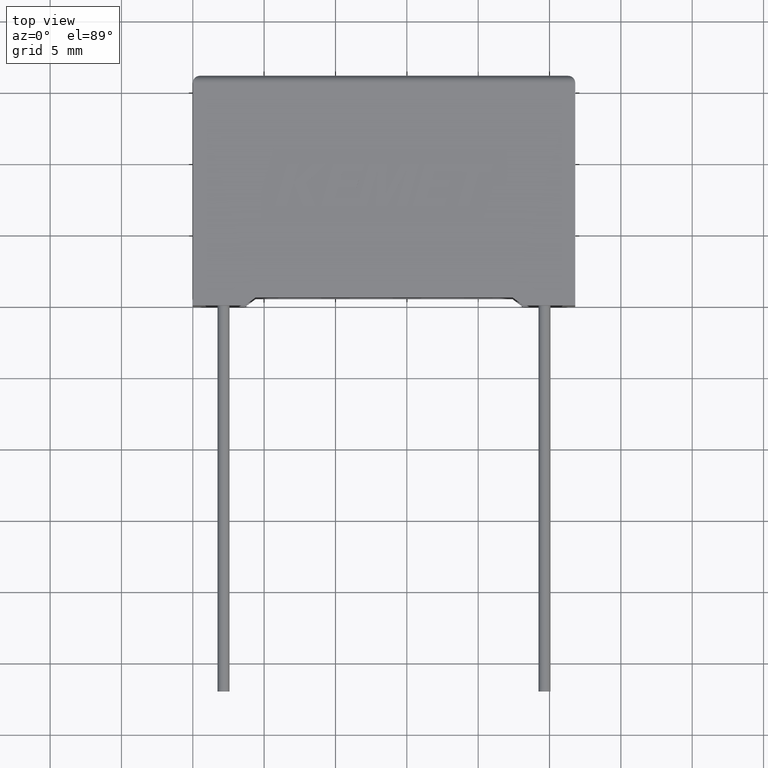
[diagram: clean part render]
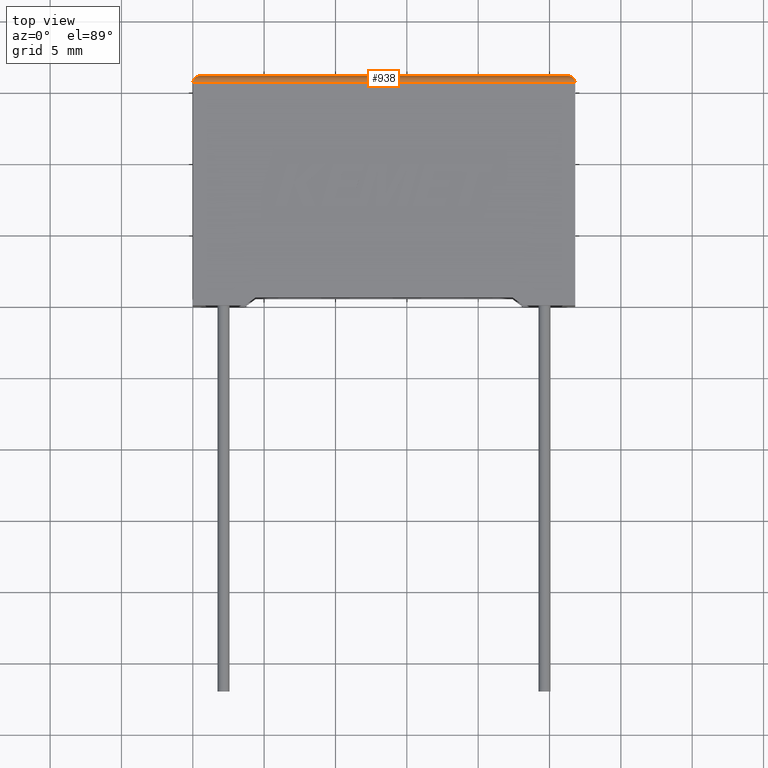
[diagram: same view with one face highlighted and labeled with its STEP entity id]
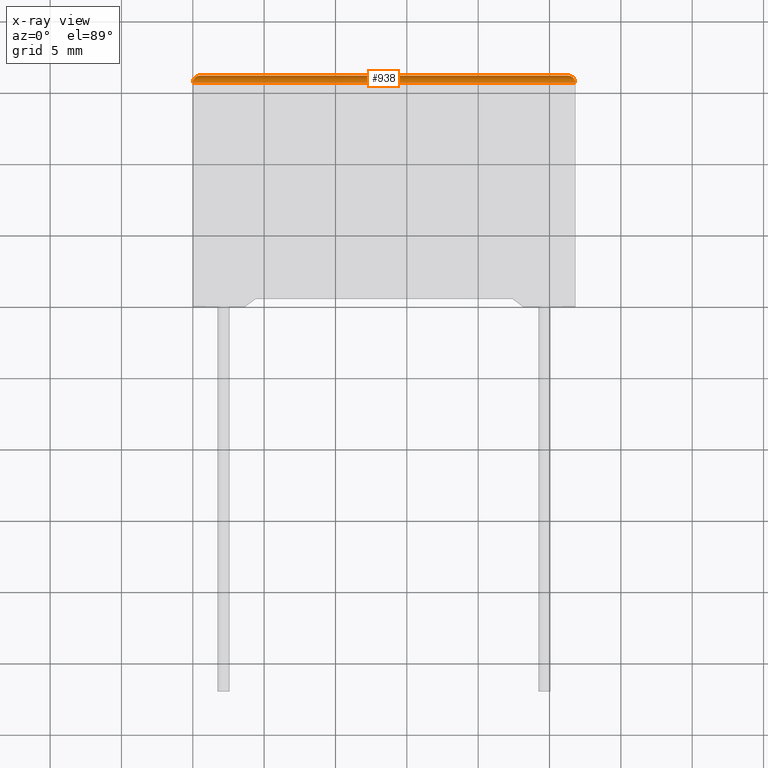
[diagram: x-ray of the same camera — body ghosted, the highlighted face saturated]
A machine part, top view. The second image highlights one B-rep face of the part: STEP entity #938.
The next image is the same camera in x-ray: the body ghosted, the highlighted face saturated — about 0% of this face is hidden behind the body in this view.
In plain terms, the highlighted cylindrical surface (edge-blend (fillet) strip) has radius 0.5 mm, axis along (-1, 0, 0).
Its self-contained STEP definition (entity closure, byte-faithful):
#43 = CARTESIAN_POINT ( 'NONE',  ( 0.5000000000000000000, 16.10000000000000142, 6.699999999999999289 ) ) ;
#72 = CARTESIAN_POINT ( 'NONE',  ( 26.30000000000000071, 16.10000000000000142, 6.699999999999999289 ) ) ;
#115 = DIRECTION ( 'NONE',  ( 1.000000000000000000, -0.000000000000000000, -0.000000000000000000 ) ) ;
#172 = LINE ( 'NONE', #2018, #1077 ) ;
#259 =( BOUNDED_CURVE ( )  B_SPLINE_CURVE ( 3, ( #1028, #2158, #1973, #1728 ),
 .UNSPECIFIED., .F., .T. ) 
 B_SPLINE_CURVE_WITH_KNOTS ( ( 4, 4 ),
 ( 0.000000000000000000, 1.570796326794896558 ),
 .UNSPECIFIED. ) 
 CURVE ( )  GEOMETRIC_REPRESENTATION_ITEM ( )  RATIONAL_B_SPLINE_CURVE ( ( 1.000000000000000000, 0.8047378541243649375, 0.8047378541243649375, 1.000000000000000000 ) ) 
 REPRESENTATION_ITEM ( '' )  );
#306 = EDGE_LOOP ( 'NONE', ( #2387, #932, #790, #1303 ) ) ;
#331 = CARTESIAN_POINT ( 'NONE',  ( 26.30000000000000071, 16.10000000000000142, 6.699999999999999289 ) ) ;
#348 = CARTESIAN_POINT ( 'NONE',  ( 26.80000000000000071, 15.89289321881345174, 7.199999999999999289 ) ) ;
#398 =( BOUNDED_CURVE ( )  B_SPLINE_CURVE ( 3, ( #793, #348, #1534, #331 ),
 .UNSPECIFIED., .F., .T. ) 
 B_SPLINE_CURVE_WITH_KNOTS ( ( 4, 4 ),
 ( 3.141592653589793116, 4.712388980384689674 ),
 .UNSPECIFIED. ) 
 CURVE ( )  GEOMETRIC_REPRESENTATION_ITEM ( )  RATIONAL_B_SPLINE_CURVE ( ( 1.000000000000000000, 0.8047378541243649375, 0.8047378541243649375, 1.000000000000000000 ) ) 
 REPRESENTATION_ITEM ( '' )  );
#455 = VERTEX_POINT ( 'NONE', #986 ) ;
#511 = DIRECTION ( 'NONE',  ( -1.000000000000000000, 0.000000000000000000, 0.000000000000000000 ) ) ;
#625 = VECTOR ( 'NONE', #1352, 1000.000000000000000 ) ;
#650 = VERTEX_POINT ( 'NONE', #2025 ) ;
#654 = FACE_OUTER_BOUND ( 'NONE', #306, .T. ) ;
#778 = VERTEX_POINT ( 'NONE', #43 ) ;
#790 = ORIENTED_EDGE ( 'NONE', *, *, #1483, .F. ) ;
#793 = CARTESIAN_POINT ( 'NONE',  ( 26.80000000000000071, 15.59999999999999964, 7.200000000000000178 ) ) ;
#881 = CARTESIAN_POINT ( 'NONE',  ( 0.000000000000000000, 15.59999999999999964, 7.200000000000000178 ) ) ;
#932 = ORIENTED_EDGE ( 'NONE', *, *, #1672, .F. ) ;
#938 = ADVANCED_FACE ( 'NONE', ( #654 ), #1605, .T. ) ;
#986 = CARTESIAN_POINT ( 'NONE',  ( 26.80000000000000071, 15.59999999999999964, 7.200000000000000178 ) ) ;
#987 = DIRECTION ( 'NONE',  ( 0.000000000000000000, 0.000000000000000000, 1.000000000000000000 ) ) ;
#1028 = CARTESIAN_POINT ( 'NONE',  ( 0.000000000000000000, 15.59999999999999964, 7.200000000000000178 ) ) ;
#1077 = VECTOR ( 'NONE', #115, 1000.000000000000000 ) ;
#1127 = AXIS2_PLACEMENT_3D ( 'NONE', #2585, #511, #987 ) ;
#1303 = ORIENTED_EDGE ( 'NONE', *, *, #1667, .F. ) ;
#1352 = DIRECTION ( 'NONE',  ( -1.000000000000000000, 0.000000000000000000, 0.000000000000000000 ) ) ;
#1483 = EDGE_CURVE ( 'NONE', #650, #778, #259, .T. ) ;
#1496 = VERTEX_POINT ( 'NONE', #72 ) ;
#1534 = CARTESIAN_POINT ( 'NONE',  ( 26.59289321881345103, 16.10000000000000142, 6.992893218813451384 ) ) ;
#1585 = LINE ( 'NONE', #881, #625 ) ;
#1605 = CYLINDRICAL_SURFACE ( 'NONE', #1127, 0.5000000000000004441 ) ;
#1667 = EDGE_CURVE ( 'NONE', #455, #650, #1585, .T. ) ;
#1672 = EDGE_CURVE ( 'NONE', #778, #1496, #172, .T. ) ;
#1728 = CARTESIAN_POINT ( 'NONE',  ( 0.5000000000000000000, 16.10000000000000142, 6.699999999999999289 ) ) ;
#1973 = CARTESIAN_POINT ( 'NONE',  ( 0.2071067811865475727, 16.10000000000000142, 6.992893218813451384 ) ) ;
#2018 = CARTESIAN_POINT ( 'NONE',  ( 0.000000000000000000, 16.10000000000000142, 6.699999999999999289 ) ) ;
#2025 = CARTESIAN_POINT ( 'NONE',  ( 0.000000000000000000, 15.59999999999999964, 7.200000000000000178 ) ) ;
#2158 = CARTESIAN_POINT ( 'NONE',  ( 1.084202172485504434E-16, 15.89289321881345174, 7.199999999999999289 ) ) ;
#2337 = EDGE_CURVE ( 'NONE', #455, #1496, #398, .T. ) ;
#2387 = ORIENTED_EDGE ( 'NONE', *, *, #2337, .T. ) ;
#2585 = CARTESIAN_POINT ( 'NONE',  ( 0.000000000000000000, 15.59999999999999964, 6.699999999999999289 ) ) ;